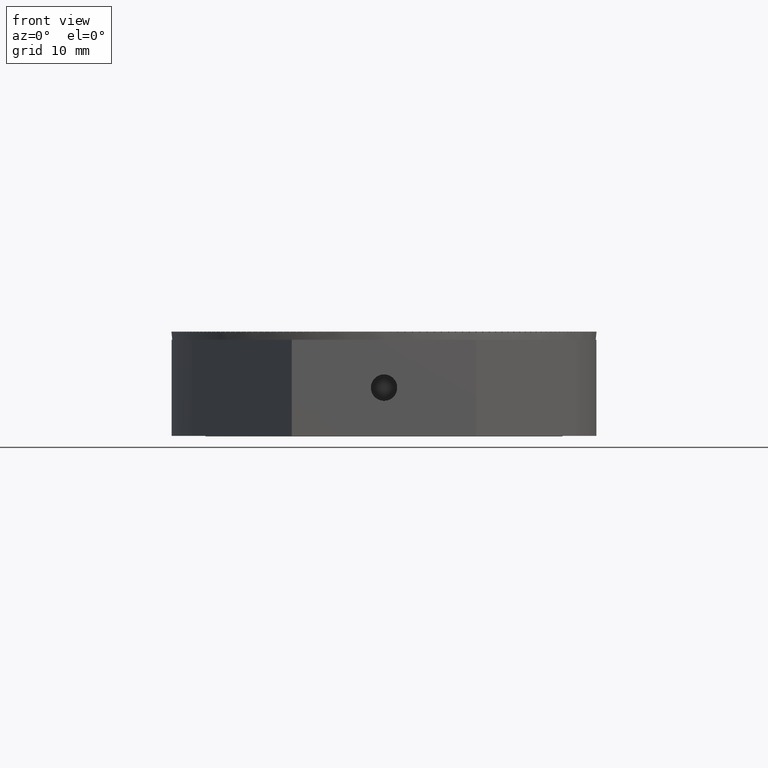
[diagram: clean part render]
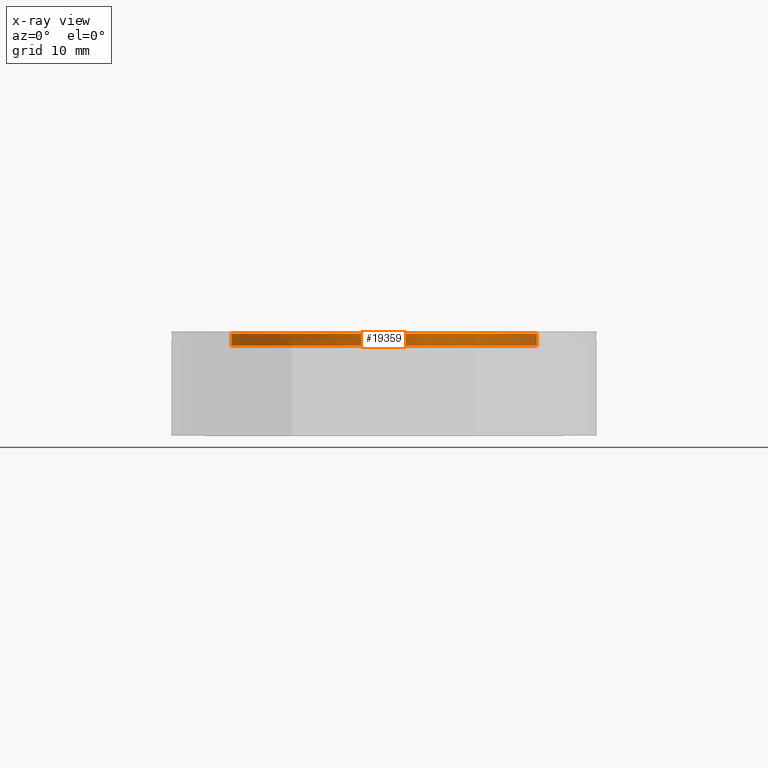
[diagram: x-ray — body ghosted, one internal face saturated and labeled with its STEP entity id]
A machine part, front view, then the same camera in x-ray: the body is ghosted and one INTERNAL B-rep face — a face not visible from any outside direction — is saturated and labeled: STEP entity #19359.
In plain terms, the highlighted cylindrical surface (partial cylindrical patch) has radius 19.05 mm, axis along (0, 0, 1).
Its self-contained STEP definition (entity closure, byte-faithful):
#62 = VECTOR ( 'NONE', #16850, 1000.000000000000000 ) ;
#88 = EDGE_CURVE ( 'NONE', #13084, #25354, #17983, .T. ) ;
#1693 = DIRECTION ( 'NONE',  ( 0.000000000000000000, 0.000000000000000000, 1.000000000000000000 ) ) ;
#1842 = AXIS2_PLACEMENT_3D ( 'NONE', #15676, #11564, #34907 ) ;
#1908 = DIRECTION ( 'NONE',  ( 1.000000000000000000, 0.000000000000000000, 0.000000000000000000 ) ) ;
#1933 = CARTESIAN_POINT ( 'NONE',  ( 19.04999999999999716, 1.592040838891560279E-15, 12.74999999999998757 ) ) ;
#2240 = CARTESIAN_POINT ( 'NONE',  ( 0.5999999999999998668, -19.04054883662783482, 12.09999999999999787 ) ) ;
#2274 = DIRECTION ( 'NONE',  ( -0.000000000000000000, -0.000000000000000000, -1.000000000000000000 ) ) ;
#2452 = ORIENTED_EDGE ( 'NONE', *, *, #9508, .T. ) ;
#2904 = DIRECTION ( 'NONE',  ( 1.000000000000000000, 0.000000000000000000, 0.000000000000000000 ) ) ;
#2967 = LINE ( 'NONE', #32281, #62 ) ;
#3983 = LINE ( 'NONE', #52847, #24384 ) ;
#4656 = ORIENTED_EDGE ( 'NONE', *, *, #45185, .T. ) ;
#5443 = VECTOR ( 'NONE', #12174, 1000.000000000000000 ) ;
#5703 = DIRECTION ( 'NONE',  ( 0.000000000000000000, 0.000000000000000000, 1.000000000000000000 ) ) ;
#5868 = ORIENTED_EDGE ( 'NONE', *, *, #28490, .T. ) ;
#8260 = VECTOR ( 'NONE', #16162, 1000.000000000000000 ) ;
#9508 = EDGE_CURVE ( 'NONE', #13084, #13634, #60325, .T. ) ;
#9628 = CIRCLE ( 'NONE', #44873, 19.04999999999999716 ) ;
#10669 = ORIENTED_EDGE ( 'NONE', *, *, #24369, .F. ) ;
#11564 = DIRECTION ( 'NONE',  ( -0.000000000000000000, -0.000000000000000000, -1.000000000000000000 ) ) ;
#12174 = DIRECTION ( 'NONE',  ( 0.000000000000000000, 0.000000000000000000, 1.000000000000000000 ) ) ;
#13084 = VERTEX_POINT ( 'NONE', #30938 ) ;
#13123 = VERTEX_POINT ( 'NONE', #2240 ) ;
#13358 = DIRECTION ( 'NONE',  ( -0.000000000000000000, -0.000000000000000000, -1.000000000000000000 ) ) ;
#13634 = VERTEX_POINT ( 'NONE', #1933 ) ;
#14061 = AXIS2_PLACEMENT_3D ( 'NONE', #16777, #2274, #2904 ) ;
#14116 = EDGE_CURVE ( 'NONE', #13634, #48994, #54345, .T. ) ;
#15578 = FACE_OUTER_BOUND ( 'NONE', #53907, .T. ) ;
#15676 = CARTESIAN_POINT ( 'NONE',  ( -2.318512153561027837E-31, 1.592040838891560279E-15, 11.25000000000000178 ) ) ;
#16162 = DIRECTION ( 'NONE',  ( 0.000000000000000000, 0.000000000000000000, 1.000000000000000000 ) ) ;
#16777 = CARTESIAN_POINT ( 'NONE',  ( -2.318512153561027837E-31, 1.592040838891560279E-15, 12.74999999999998757 ) ) ;
#16850 = DIRECTION ( 'NONE',  ( 0.000000000000000000, 0.000000000000000000, -1.000000000000000000 ) ) ;
#17549 = ORIENTED_EDGE ( 'NONE', *, *, #37927, .T. ) ;
#17983 = CIRCLE ( 'NONE', #1842, 19.04999999999999716 ) ;
#19359 = ADVANCED_FACE ( 'NONE', ( #15578 ), #36286, .T. ) ;
#20918 = AXIS2_PLACEMENT_3D ( 'NONE', #25041, #1693, #41034 ) ;
#21951 = ORIENTED_EDGE ( 'NONE', *, *, #88, .F. ) ;
#24369 = EDGE_CURVE ( 'NONE', #51121, #13123, #9628, .T. ) ;
#24384 = VECTOR ( 'NONE', #42453, 1000.000000000000000 ) ;
#25041 = CARTESIAN_POINT ( 'NONE',  ( -2.318512153561027837E-31, 1.592040838891560279E-15, 10.99999999999999822 ) ) ;
#25354 = VERTEX_POINT ( 'NONE', #51812 ) ;
#27112 = ORIENTED_EDGE ( 'NONE', *, *, #47317, .F. ) ;
#28490 = EDGE_CURVE ( 'NONE', #48994, #13123, #2967, .T. ) ;
#30316 = AXIS2_PLACEMENT_3D ( 'NONE', #56565, #13358, #47112 ) ;
#30938 = CARTESIAN_POINT ( 'NONE',  ( 19.04999999999999716, 1.592040838891560279E-15, 11.25000000000000178 ) ) ;
#32281 = CARTESIAN_POINT ( 'NONE',  ( 0.5999999999999998668, -19.04054883662809061, 12.09999999999999787 ) ) ;
#34907 = DIRECTION ( 'NONE',  ( 0.000000000000000000, 1.000000000000000000, 0.000000000000000000 ) ) ;
#36286 = CYLINDRICAL_SURFACE ( 'NONE', #20918, 19.04999999999999716 ) ;
#36454 = LINE ( 'NONE', #46245, #5443 ) ;
#37927 = EDGE_CURVE ( 'NONE', #51121, #61474, #36454, .T. ) ;
#41034 = DIRECTION ( 'NONE',  ( 1.000000000000000000, 0.000000000000000000, 0.000000000000000000 ) ) ;
#42453 = DIRECTION ( 'NONE',  ( 0.000000000000000000, 0.000000000000000000, 1.000000000000000000 ) ) ;
#43447 = CARTESIAN_POINT ( 'NONE',  ( -19.04999999999999716, 1.734723475976807094E-15, 12.74999999999998757 ) ) ;
#44184 = CARTESIAN_POINT ( 'NONE',  ( -2.318512153561027837E-31, 1.592040838891560279E-15, 12.09999999999999787 ) ) ;
#44873 = AXIS2_PLACEMENT_3D ( 'NONE', #44184, #5703, #1908 ) ;
#45185 = EDGE_CURVE ( 'NONE', #61474, #58065, #58502, .T. ) ;
#46245 = CARTESIAN_POINT ( 'NONE',  ( -0.6000000000000000888, -19.04054883662809061, 12.09999999999999787 ) ) ;
#46744 = CARTESIAN_POINT ( 'NONE',  ( -0.6000000000000000888, -19.04054883662783482, 12.09999999999999787 ) ) ;
#47112 = DIRECTION ( 'NONE',  ( 1.000000000000000000, 0.000000000000000000, 0.000000000000000000 ) ) ;
#47317 = EDGE_CURVE ( 'NONE', #25354, #58065, #3983, .T. ) ;
#48994 = VERTEX_POINT ( 'NONE', #50785 ) ;
#50785 = CARTESIAN_POINT ( 'NONE',  ( 0.5999999999999998668, -19.04054883662783482, 12.74999999999973177 ) ) ;
#51121 = VERTEX_POINT ( 'NONE', #46744 ) ;
#51271 = ORIENTED_EDGE ( 'NONE', *, *, #14116, .T. ) ;
#51812 = CARTESIAN_POINT ( 'NONE',  ( -19.04999999999999716, 3.924992991267267336E-15, 11.25000000000000178 ) ) ;
#52847 = CARTESIAN_POINT ( 'NONE',  ( -19.04999999999999716, 3.924992991267267336E-15, 10.99999999999999822 ) ) ;
#53907 = EDGE_LOOP ( 'NONE', ( #27112, #21951, #2452, #51271, #5868, #10669, #17549, #4656 ) ) ;
#54345 = CIRCLE ( 'NONE', #14061, 19.04999999999999716 ) ;
#56565 = CARTESIAN_POINT ( 'NONE',  ( -2.318512153561027837E-31, 1.592040838891560279E-15, 12.74999999999998757 ) ) ;
#58065 = VERTEX_POINT ( 'NONE', #43447 ) ;
#58502 = CIRCLE ( 'NONE', #30316, 19.04999999999999716 ) ;
#60002 = CARTESIAN_POINT ( 'NONE',  ( 19.04999999999999716, 1.592040838891560279E-15, 10.99999999999999822 ) ) ;
#60080 = CARTESIAN_POINT ( 'NONE',  ( -0.6000000000000000888, -19.04054883662789521, 12.74999999999966782 ) ) ;
#60325 = LINE ( 'NONE', #60002, #8260 ) ;
#61474 = VERTEX_POINT ( 'NONE', #60080 ) ;